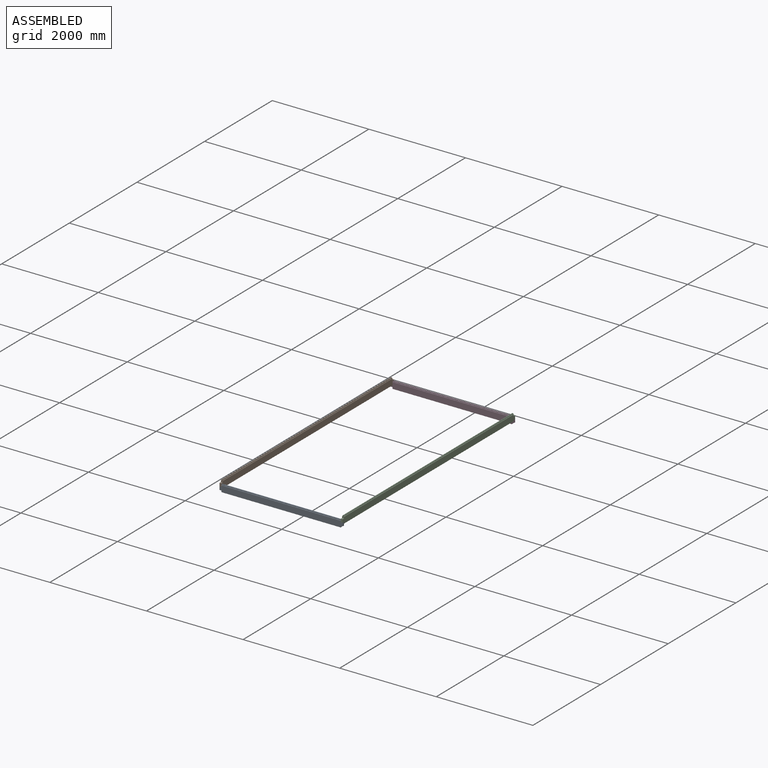
[diagram: assembled view]
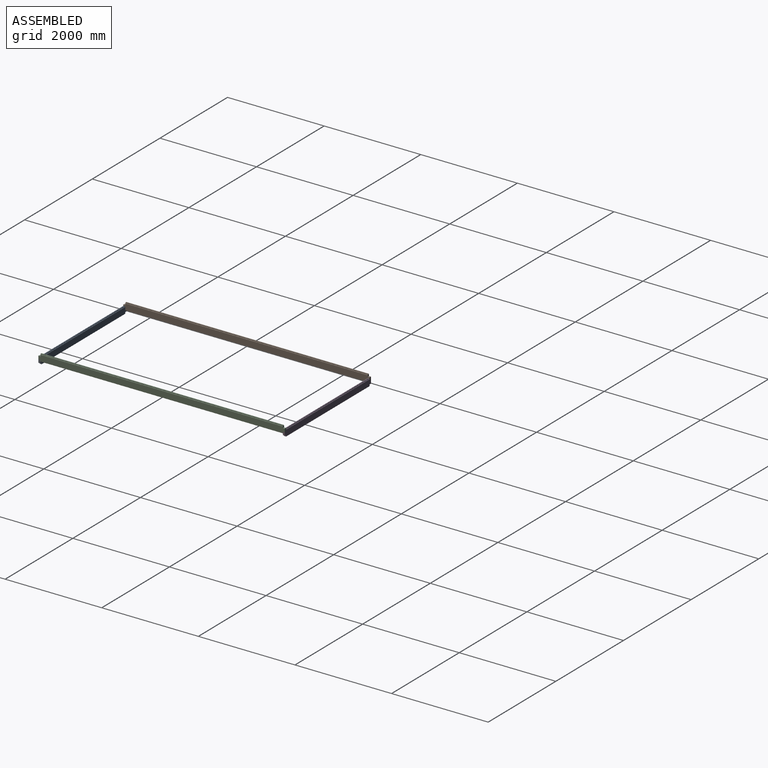
[diagram: assembled view, second angle]
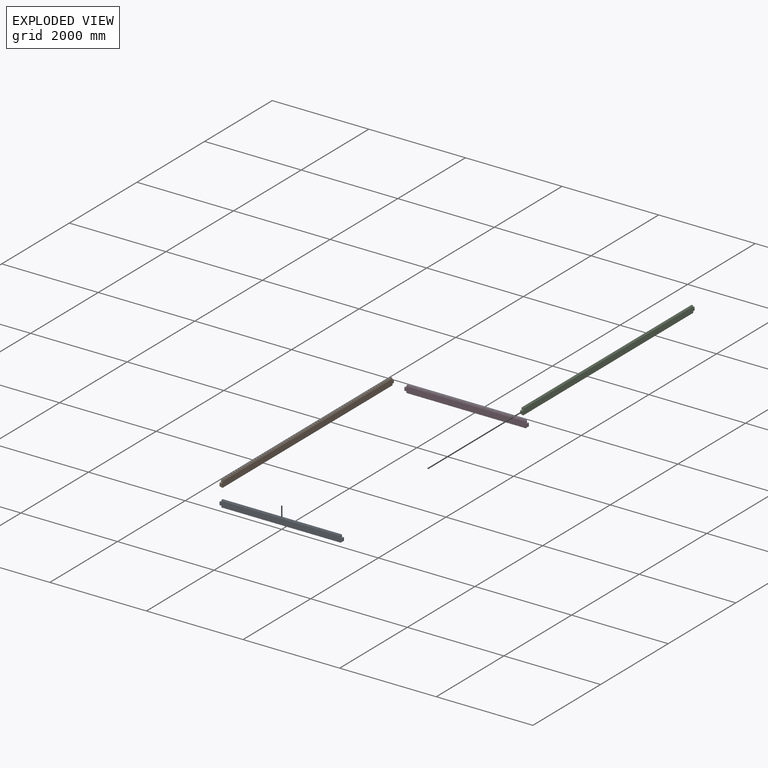
[diagram: exploded view]
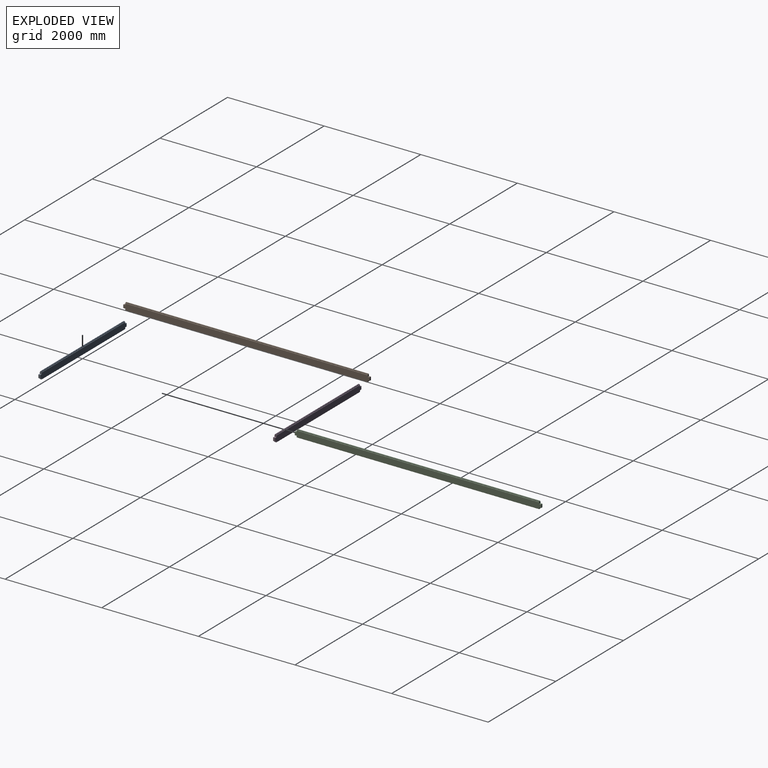
[diagram: exploded view, second angle]
ASSEMBLY  parts=4 mates=9
PART A: 34 faces, bbox 2550x40x146 mm
  f0: plane 2550x126mm, normal (0,1,0), area 316500mm2, adj f1,f13,f14,f25,f26,f27,f28,f29
  f1: plane 2470x3mm, normal (0,0.71,0.71), area 10479.3mm2, adj f0,f2,f27,f33
  f2: plane 2470x5mm, normal (0,0,1), area 12350mm2, adj f1,f3,f27,f33
  f3: plane 2470x14mm, normal (0,1,0), area 34580mm2, adj f2,f4,f27,f33
  f4: plane 2470x8mm, normal (0,0,1), area 19760mm2, adj f3,f5,f27,f33
  f5: plane 2470x14mm, normal (0,-1,0), area 34580mm2, adj f4,f6,f27,f33
  f6: plane 2470x8mm, normal (0,0,1), area 19760mm2, adj f5,f7,f27,f33
  f7: plane 2470x14mm, normal (0,1,0), area 34580mm2, adj f6,f8,f27,f33
  f8: plane 2470x8mm, normal (0,0,1), area 19760mm2, adj f7,f9,f27,f33
  f9: plane 2470x14mm, normal (0,-1,0), area 34580mm2, adj f8,f10,f27,f33
  f10: plane 2470x5mm, normal (0,0,1), area 12350mm2, adj f9,f11,f27,f33
  f11: plane 2470x3mm, normal (0,-0.71,0.71), area 10479.3mm2, adj f10,f12,f27,f33
  f12: plane 2550x126mm, normal (0,-1,0), area 316500mm2, adj f11,f13,f14,f15,f26,f27,f28,f29
  f13: plane 66x40mm, normal (1,0,0), area 2640mm2, adj f0,f12,f30,f32
  f14: plane 66x40mm, normal (-1,0,0), area 2640mm2, adj f0,f12,f26,f29
  f15: plane 2470x3mm, normal (0,-0.71,-0.71), area 10479.3mm2, adj f12,f16,f28,f31
  f16: plane 2470x5mm, normal (0,0,-1), area 12350mm2, adj f15,f17,f28,f31
  f17: plane 2470x14mm, normal (0,1,0), area 34580mm2, adj f16,f18,f28,f31
  f18: plane 2470x8mm, normal (0,0,-1), area 19760mm2, adj f17,f19,f28,f31
  f19: plane 2470x14mm, normal (0,-1,0), area 34580mm2, adj f18,f20,f28,f31
  f20: plane 2470x8mm, normal (0,0,-1), area 19760mm2, adj f19,f21,f28,f31
  f21: plane 2470x14mm, normal (0,1,0), area 34580mm2, adj f20,f22,f28,f31
  f22: plane 2470x8mm, normal (0,0,-1), area 19760mm2, adj f21,f23,f28,f31
  f23: plane 2470x14mm, normal (0,-1,0), area 34580mm2, adj f22,f24,f28,f31
  f24: plane 2470x5mm, normal (0,0,-1), area 12350mm2, adj f23,f25,f28,f31
  f25: plane 2470x3mm, normal (0,0.71,-0.71), area 10479.3mm2, adj f0,f24,f28,f31
  f26: plane 40x40mm, normal (0,0,1), area 1600mm2, adj f0,f12,f14,f27
  f27: plane 47x40mm, normal (-1,0,0), area 1535mm2, adj f0,f1,f2,f3,f4,f5,f6,f7
  f28: plane 40x33mm, normal (-1,0,0), area 1087mm2, adj f0,f12,f15,f16,f17,f18,f19,f20
  f29: plane 40x40mm, normal (0,0,-1), area 1600mm2, adj f0,f12,f14,f28
  f30: plane 40x40mm, normal (0,0,-1), area 1600mm2, adj f0,f12,f13,f31
  f31: plane 40x33mm, normal (1,0,0), area 1087mm2, adj f0,f12,f15,f16,f17,f18,f19,f20
  f32: plane 40x40mm, normal (0,0,1), area 1600mm2, adj f0,f12,f13,f33
  f33: plane 47x40mm, normal (1,0,0), area 1535mm2, adj f0,f1,f2,f3,f4,f5,f6,f7
PART B: 34 faces, bbox 5100x40x146 mm
  f0: plane 5100x126mm, normal (0,1,0), area 637800mm2, adj f1,f23,f24,f25,f26,f27,f28,f29
  f1: plane 5020x3mm, normal (0,0.71,0.71), area 21298.1mm2, adj f0,f2,f26,f32
  f2: plane 5020x5mm, normal (0,0,1), area 25100mm2, adj f1,f3,f26,f32
  f3: plane 5020x14mm, normal (0,1,0), area 70280mm2, adj f2,f4,f26,f32
  f4: plane 5020x8mm, normal (0,0,1), area 40160mm2, adj f3,f5,f26,f32
  f5: plane 5020x14mm, normal (0,-1,0), area 70280mm2, adj f4,f6,f26,f32
  f6: plane 5020x8mm, normal (0,0,1), area 40160mm2, adj f5,f7,f26,f32
  f7: plane 5020x14mm, normal (0,1,0), area 70280mm2, adj f6,f8,f26,f32
  f8: plane 5020x8mm, normal (0,0,1), area 40160mm2, adj f7,f9,f26,f32
  f9: plane 5020x14mm, normal (0,-1,0), area 70280mm2, adj f8,f10,f26,f32
  f10: plane 5020x5mm, normal (0,0,1), area 25100mm2, adj f9,f11,f26,f32
  f11: plane 5020x3mm, normal (0,-0.71,0.71), area 21298.1mm2, adj f10,f12,f26,f32
  f12: plane 5100x126mm, normal (0,-1,0), area 637800mm2, adj f11,f13,f24,f25,f26,f27,f28,f29
  f13: plane 5020x3mm, normal (0,-0.71,-0.71), area 21298.1mm2, adj f12,f14,f28,f30
  f14: plane 5020x5mm, normal (0,0,-1), area 25100mm2, adj f13,f15,f28,f30
  f15: plane 5020x14mm, normal (0,1,0), area 70280mm2, adj f14,f16,f28,f30
  f16: plane 5020x8mm, normal (0,0,-1), area 40160mm2, adj f15,f17,f28,f30
  f17: plane 5020x14mm, normal (0,-1,0), area 70280mm2, adj f16,f18,f28,f30
  f18: plane 5020x8mm, normal (0,0,-1), area 40160mm2, adj f17,f19,f28,f30
  f19: plane 5020x14mm, normal (0,1,0), area 70280mm2, adj f18,f20,f28,f30
  f20: plane 5020x8mm, normal (0,0,-1), area 40160mm2, adj f19,f21,f28,f30
  f21: plane 5020x14mm, normal (0,-1,0), area 70280mm2, adj f20,f22,f28,f30
  f22: plane 5020x5mm, normal (0,0,-1), area 25100mm2, adj f21,f23,f28,f30
  f23: plane 5020x3mm, normal (0,0.71,-0.71), area 21298.1mm2, adj f0,f22,f28,f30
  f24: plane 66x40mm, normal (1,0,0), area 2640mm2, adj f0,f12,f31,f33
  f25: plane 66x40mm, normal (-1,0,0), area 2640mm2, adj f0,f12,f27,f29
  f26: plane 47x40mm, normal (-1,0,0), area 1535mm2, adj f0,f1,f2,f3,f4,f5,f6,f7
  f27: plane 40x40mm, normal (0,0,1), area 1600mm2, adj f0,f12,f25,f26
  f28: plane 40x33mm, normal (-1,0,0), area 1087mm2, adj f0,f12,f13,f14,f15,f16,f17,f18
  f29: plane 40x40mm, normal (0,0,-1), area 1600mm2, adj f0,f12,f25,f28
  f30: plane 40x33mm, normal (1,0,0), area 1087mm2, adj f0,f12,f13,f14,f15,f16,f17,f18
  f31: plane 40x40mm, normal (0,0,-1), area 1600mm2, adj f0,f12,f24,f30
  f32: plane 47x40mm, normal (1,0,0), area 1535mm2, adj f0,f1,f2,f3,f4,f5,f6,f7
  f33: plane 40x40mm, normal (0,0,1), area 1600mm2, adj f0,f12,f24,f32
PART C: same geometry as B
PART D: same geometry as A
PLACE A at identity fixed
PLACE B rot(axis=(0,0,1),90deg) t=(-1255,2530,73)mm
PLACE C rot(axis=(0,0,1),90deg) t=(1255,2530,73)mm
PLACE D t=(0,5060,0)mm
MATE planar D.f27 <-> B.f12  axis (-1,0,0) through (-1235,5060,52.84)mm
MATE planar B.f32 <-> D.f12  axis (0,1,0) through (-1255,5040,118.84)mm
MATE planar D.f26 <-> B.f31  axis (0,0,1) through (-1255,5060,33)mm
MATE planar A.f33 <-> C.f0  axis (1,0,0) through (1235,0,52.84)mm
MATE planar C.f29 <-> A.f32  axis (0,0,-1) through (1255,0,33)mm
MATE planar B.f29 <-> A.f26  axis (0,0,-1) through (-1255,0,33)mm
MATE planar C.f30 <-> D.f12  axis (0,1,0) through (1255,5040,18.59)mm
MATE planar A.f27 <-> B.f12  axis (-1,0,0) through (-1235,0,52.84)mm
MATE planar B.f28 <-> A.f0  axis (0,-1,0) through (-1255,20,18.59)mm
